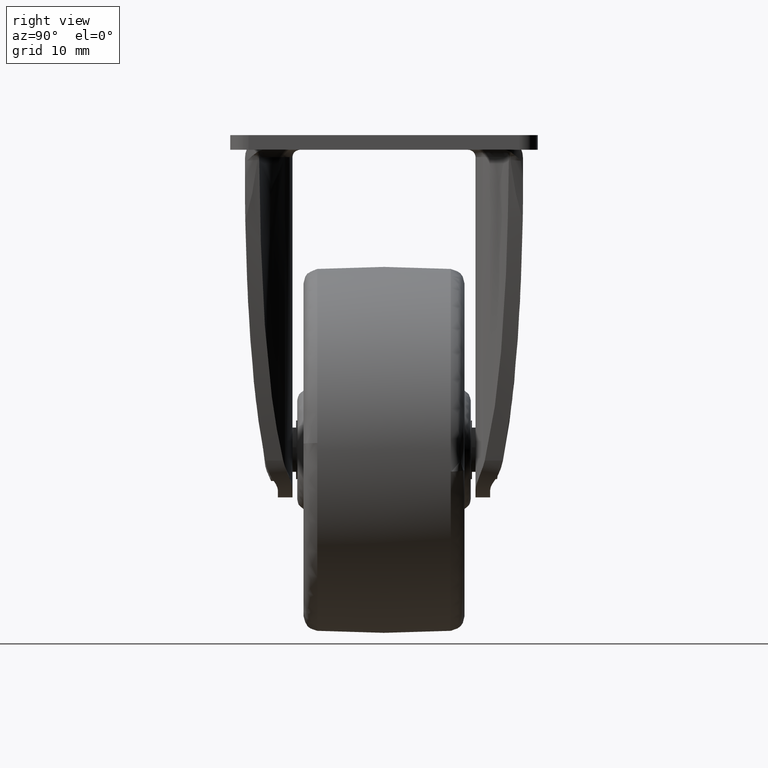
[diagram: clean part render]
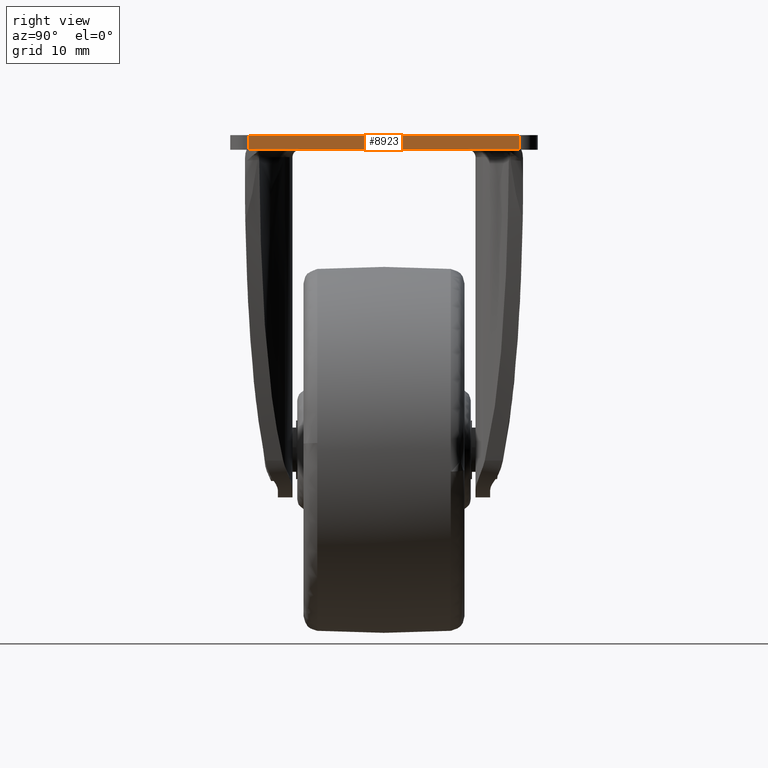
[diagram: same view with one face highlighted and labeled with its STEP entity id]
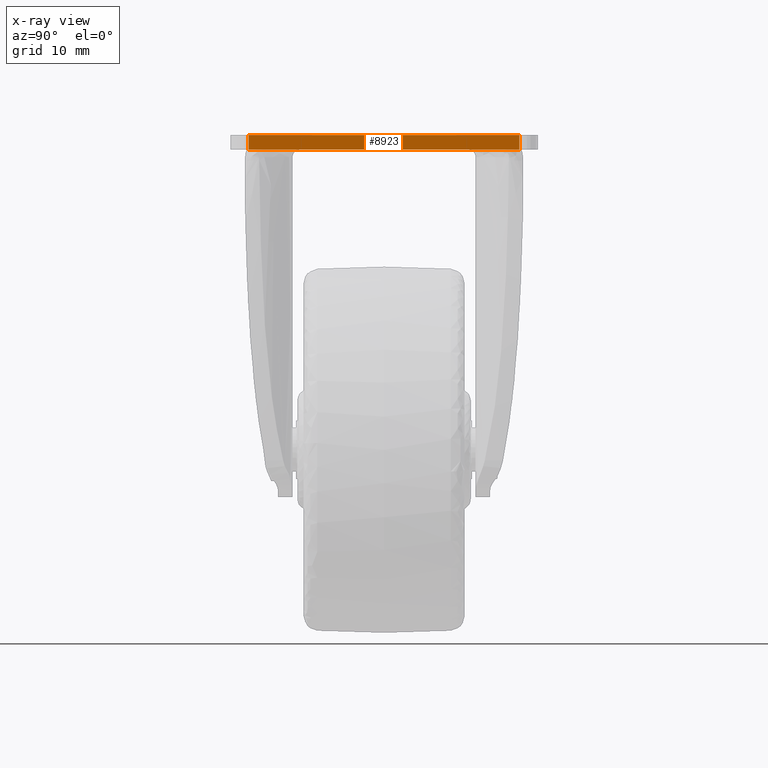
[diagram: x-ray of the same camera — body ghosted, the highlighted face saturated]
A machine part, right view. The second image highlights one B-rep face of the part: STEP entity #8923.
The next image is the same camera in x-ray: the body ghosted, the highlighted face saturated — about 0% of this face is hidden behind the body in this view.
In plain terms, the highlighted face is a freeform B-spline surface patch.
Its self-contained STEP definition (entity closure, byte-faithful):
#8857=CARTESIAN_POINT('',(30.0,-18.500000000000000,-2.0));
#8858=VERTEX_POINT('',#8857);
#8872=CARTESIAN_POINT('',(30.0,-18.500000000000000,0.0));
#8873=VERTEX_POINT('',#8872);
#8874=CARTESIAN_POINT('',(30.0,-18.500000000000000,-2.0));
#8875=CARTESIAN_POINT('',(30.0,-18.500000000000000,0.0));
#8876=QUASI_UNIFORM_CURVE('',1,(#8874,#8875),.UNSPECIFIED.,.F.,.U.);
#8877=EDGE_CURVE('',#8858,#8873,#8876,.T.);
#8896=CARTESIAN_POINT('',(30.0,-20.348149928286819,-2.099899996123611));
#8897=CARTESIAN_POINT('',(30.0,-20.348149928286819,0.099900049767792));
#8898=CARTESIAN_POINT('',(30.0,20.348150920704160,-2.099899996123611));
#8899=CARTESIAN_POINT('',(30.0,20.348150920704160,0.099900049767792));
#8900=B_SPLINE_SURFACE_WITH_KNOTS('',1,1,((#8896,#8898),(#8897,#8899)),.UNSPECIFIED.,.F.,.F.,.U.,(2,2),(2,2),(0.0,2.199800045891403),(0.0,40.696300848990980),.UNSPECIFIED.);
#8901=CARTESIAN_POINT('',(30.0,18.500000000000000,-2.0));
#8902=VERTEX_POINT('',#8901);
#8903=CARTESIAN_POINT('',(30.0,18.500000000000000,-2.0));
#8904=CARTESIAN_POINT('',(30.0,-18.500000000000000,-2.0));
#8905=QUASI_UNIFORM_CURVE('',1,(#8903,#8904),.UNSPECIFIED.,.F.,.U.);
#8906=EDGE_CURVE('',#8902,#8858,#8905,.T.);
#8907=ORIENTED_EDGE('',*,*,#8906,.F.);
#8908=CARTESIAN_POINT('',(30.0,18.500000000000000,0.0));
#8909=VERTEX_POINT('',#8908);
#8910=CARTESIAN_POINT('',(30.0,18.500000000000000,-2.0));
#8911=CARTESIAN_POINT('',(30.0,18.500000000000000,0.0));
#8912=QUASI_UNIFORM_CURVE('',1,(#8910,#8911),.UNSPECIFIED.,.F.,.U.);
#8913=EDGE_CURVE('',#8902,#8909,#8912,.T.);
#8914=ORIENTED_EDGE('',*,*,#8913,.T.);
#8915=CARTESIAN_POINT('',(30.0,18.500000000000000,0.0));
#8916=CARTESIAN_POINT('',(30.0,-18.500000000000000,0.0));
#8917=QUASI_UNIFORM_CURVE('',1,(#8915,#8916),.UNSPECIFIED.,.F.,.U.);
#8918=EDGE_CURVE('',#8909,#8873,#8917,.T.);
#8919=ORIENTED_EDGE('',*,*,#8918,.T.);
#8920=ORIENTED_EDGE('',*,*,#8877,.F.);
#8921=EDGE_LOOP('',(#8907,#8914,#8919,#8920));
#8922=FACE_OUTER_BOUND('',#8921,.T.);
#8923=ADVANCED_FACE('',(#8922),#8900,.F.);